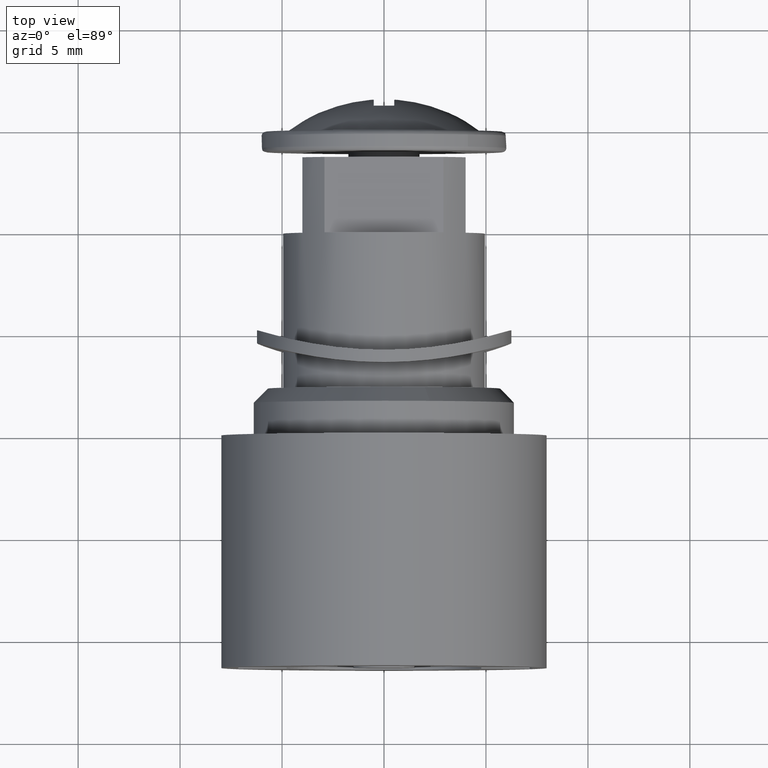
[diagram: clean part render]
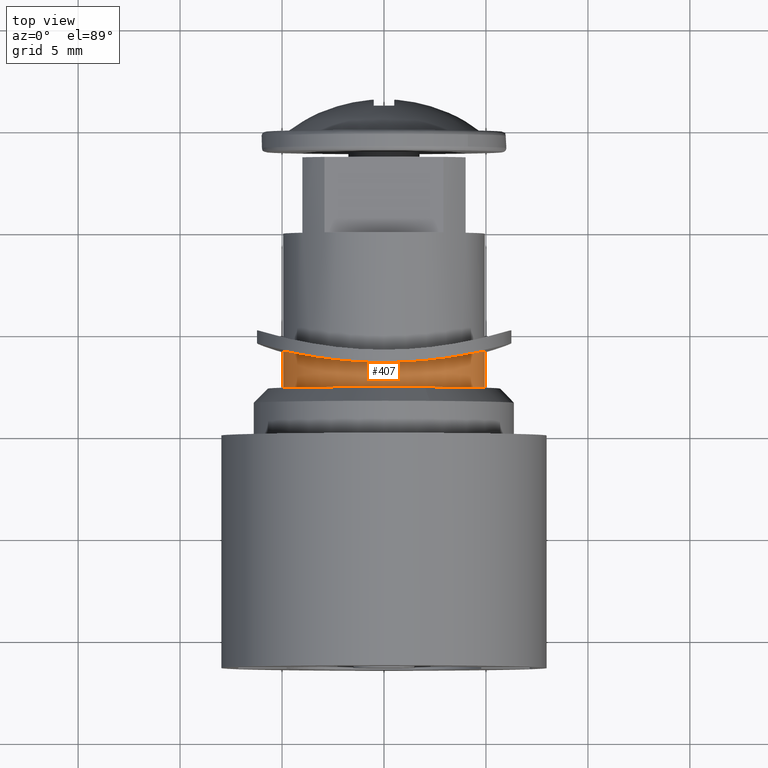
[diagram: same view with one face highlighted and labeled with its STEP entity id]
A machine part, top view. The second image highlights one B-rep face of the part: STEP entity #407.
In plain terms, the highlighted face is a freeform B-spline surface patch.
Its self-contained STEP definition (entity closure, byte-faithful):
#260=CARTESIAN_POINT('',(4.948303993660809,4.186439080181096,0.129575900278496));
#261=CARTESIAN_POINT('',(4.818728093382314,4.186439080181095,5.077879893939304));
#262=CARTESIAN_POINT('',(-0.129575900278496,4.186439080181096,4.948303993660809));
#263=CARTESIAN_POINT('',(-5.077879893939304,4.186439080181095,4.818728093382314));
#264=CARTESIAN_POINT('',(-4.948303993660809,4.186439080181096,-0.129575900278496));
#265=CARTESIAN_POINT('',(4.948303993660809,2.252839134970670,0.129575900278496));
#266=CARTESIAN_POINT('',(4.818728093382314,2.252839134970671,5.077879893939304));
#267=CARTESIAN_POINT('',(-0.129575900278496,2.252839134970670,4.948303993660809));
#268=CARTESIAN_POINT('',(-5.077879893939304,2.252839134970671,4.818728093382314));
#269=CARTESIAN_POINT('',(-4.948303993660809,2.252839134970670,-0.129575900278496));
#277=(BOUNDED_SURFACE()B_SPLINE_SURFACE(2,1,((#260,#265),(#261,#266),(#262,#267),(#263,#268),(#264,#269)),.UNSPECIFIED.,.F.,.F.,.U.)B_SPLINE_SURFACE_WITH_KNOTS((3,2,3),(2,2),(0.0,8.201428924534207,16.402857849068418),(0.0,1.0),.UNSPECIFIED.)GEOMETRIC_REPRESENTATION_ITEM()RATIONAL_B_SPLINE_SURFACE(((1.0,1.0),(0.707106781186548,0.707106781186548),(1.0,1.0),(0.707106781186548,0.707106781186548),(1.0,1.0)))REPRESENTATION_ITEM('')SURFACE());
#278=CARTESIAN_POINT('',(-0.002099543372833,3.500000733602917,4.949999789851526));
#279=VERTEX_POINT('',#278);
#280=CARTESIAN_POINT('',(4.948302961237921,4.139980846063183,0.129575664480564));
#281=VERTEX_POINT('',#280);
#282=CARTESIAN_POINT('',(-0.002099543372833,3.500000733602917,4.949999789851526));
#283=CARTESIAN_POINT('',(0.321722795813629,3.499965757151134,4.950137139903032));
#284=CARTESIAN_POINT('',(0.644658245779119,3.508018342886984,4.918792569408495));
#285=CARTESIAN_POINT('',(1.288089916593785,3.540026734876958,4.790712815840104));
#286=CARTESIAN_POINT('',(1.597715790000522,3.563417965830636,4.696170611133682));
#287=CARTESIAN_POINT('',(2.045016414102488,3.607227785039646,4.510705501454247));
#288=CARTESIAN_POINT('',(2.191238857997488,3.623288074592193,4.441552171374233));
#289=CARTESIAN_POINT('',(2.406191885821426,3.649276257196116,4.326586067553055));
#290=CARTESIAN_POINT('',(2.477297398221124,3.658280682739648,4.286270742980817));
#291=CARTESIAN_POINT('',(2.616778570513428,3.676704807029641,4.202569382632230));
#292=CARTESIAN_POINT('',(2.685211659041311,3.686128896932317,4.159167080375737));
#293=CARTESIAN_POINT('',(3.020985535947149,3.734127149183395,3.934539420449199));
#294=CARTESIAN_POINT('',(3.269340775626774,3.775334166287148,3.730696005035675));
#295=CARTESIAN_POINT('',(3.554825713375168,3.827524198750967,3.445610455994516));
#296=CARTESIAN_POINT('',(3.610662971688160,3.837995990136804,3.387064880087545));
#297=CARTESIAN_POINT('',(3.719779028855245,3.858933253026692,3.266854737575257));
#298=CARTESIAN_POINT('',(3.773087421954459,3.869406057795322,3.205134447970790));
#299=CARTESIAN_POINT('',(3.927446444473180,3.900362686769253,3.017274666834178));
#300=CARTESIAN_POINT('',(4.023545931494982,3.920497606812671,2.887809663269210));
#301=CARTESIAN_POINT('',(4.291966231532462,3.978572714025878,2.486959984674374));
#302=CARTESIAN_POINT('',(4.444613132951807,4.014199290437531,2.203247557131390));
#303=CARTESIAN_POINT('',(4.601277114686917,4.052068913716880,1.826857250782440));
#304=CARTESIAN_POINT('',(4.630865454654090,4.059303864641439,1.750490973033831));
#305=CARTESIAN_POINT('',(4.685907526387863,4.072881920147184,1.597311633245639));
#306=CARTESIAN_POINT('',(4.711455647606940,4.079247728232072,1.520281038566840));
#307=CARTESIAN_POINT('',(4.782269633578633,4.097021958008815,1.287882339107075));
#308=CARTESIAN_POINT('',(4.861168158060776,4.117191749912053,0.974538103212876));
#309=CARTESIAN_POINT('',(4.909270678461004,4.129748688641580,0.654257280323307));
#310=CARTESIAN_POINT('',(4.933548182457051,4.136103766557798,0.411381109906006));
#311=CARTESIAN_POINT('',(4.939670545123053,4.137711663310330,0.329977368555349));
#312=CARTESIAN_POINT('',(4.945760410220337,4.139312129814794,0.208636579492063));
#313=CARTESIAN_POINT('',(4.947268218436352,4.139708645816957,0.169094395870061));
#314=CARTESIAN_POINT('',(4.948302961237921,4.139980846063183,0.129575664480564));
#315=B_SPLINE_CURVE_WITH_KNOTS('',3,(#282,#283,#284,#285,#286,#287,#288,#289,#290,#291,#292,#293,#294,#295,#296,#297,#298,#299,#300,#301,#302,#303,#304,#305,#306,#307,#308,#309,#310,#311,#312,#313,#314),.UNSPECIFIED.,.F.,.U.,(4,2,2,2,2,2,2,2,2,2,2,2,2,1,2,2,4),(0.500000000000000,0.531250000000000,0.562500000000000,0.578125000000000,0.585937500000000,0.593750000000000,0.625000000000000,0.632812500000000,0.640625000000000,0.656250000000000,0.687500000000000,0.695312500000000,0.703125000000000,0.718750000000000,0.734375000000000,0.742187500000000,0.745955581096318),.UNSPECIFIED.);
#316=EDGE_CURVE('',#279,#281,#315,.T.);
#317=ORIENTED_EDGE('',*,*,#316,.F.);
#318=CARTESIAN_POINT('',(-4.948309921022460,4.139981888336846,-0.129576054543701));
#319=VERTEX_POINT('',#318);
#320=CARTESIAN_POINT('',(-4.948309921022460,4.139981888336846,-0.129576054543701));
#321=CARTESIAN_POINT('',(-4.949405817828960,4.140272064040057,-0.087469301620223));
#322=CARTESIAN_POINT('',(-4.949966589064130,4.140421095366016,-0.045324361945491));
#323=CARTESIAN_POINT('',(-4.950096392108939,4.140455222891127,0.159015787891033));
#324=CARTESIAN_POINT('',(-4.942252430209198,4.138385309138472,0.321739987836729));
#325=CARTESIAN_POINT('',(-4.910092055518179,4.129965337627615,0.648362751332585));
#326=CARTESIAN_POINT('',(-4.886011895726635,4.123678141167941,0.809703657340282));
#327=CARTESIAN_POINT('',(-4.790836434982202,4.099148104922952,1.286650040766992));
#328=CARTESIAN_POINT('',(-4.696963821221866,4.075217587607180,1.595873404879965));
#329=CARTESIAN_POINT('',(-4.541182842253085,4.037540351122195,1.971480363621703));
#330=CARTESIAN_POINT('',(-4.507987516337105,4.029593579974270,2.046253006952550));
#331=CARTESIAN_POINT('',(-4.438196108474224,4.013100904726826,2.193517698493048));
#332=CARTESIAN_POINT('',(-4.401627795989550,4.004561049029977,2.265984659945171));
#333=CARTESIAN_POINT('',(-4.287003589428082,3.978173561197867,2.479971710222488));
#334=CARTESIAN_POINT('',(-4.204040752012639,3.959558728935548,2.618086346395814));
#335=CARTESIAN_POINT('',(-4.025232960375913,3.920856014282992,2.885452807146525));
#336=CARTESIAN_POINT('',(-3.929387870446559,3.900767218715198,3.014704409836398));
#337=CARTESIAN_POINT('',(-3.775820144241278,3.869948498565023,3.201901710201524));
#338=CARTESIAN_POINT('',(-3.722994496344990,3.859561323492494,3.263185404390043));
#339=CARTESIAN_POINT('',(-3.614008719922731,3.838629583415162,3.383490749026647));
#340=CARTESIAN_POINT('',(-3.557787245377366,3.828075349365212,3.442556915639807));
#341=CARTESIAN_POINT('',(-3.271314738914261,3.775661843805110,3.729081636995620));
#342=CARTESIAN_POINT('',(-3.022908080590512,3.734446599530593,3.932959397300881));
#343=CARTESIAN_POINT('',(-2.621716983116832,3.677031403860623,4.201786057372718));
#344=CARTESIAN_POINT('',(-2.483188239015497,3.658625052793203,4.285183221545315));
#345=CARTESIAN_POINT('',(-2.267900525911419,3.632538386512647,4.400653793384247));
#346=CARTESIAN_POINT('',(-2.194920214638032,3.624104152766393,4.437501883701896));
#347=CARTESIAN_POINT('',(-2.048097047343503,3.607993272058737,4.507149560865092));
#348=CARTESIAN_POINT('',(-1.974052074835372,3.600291479750129,4.540061016332655));
#349=CARTESIAN_POINT('',(-1.600697101210951,3.563656522397390,4.695197904383737));
#350=CARTESIAN_POINT('',(-1.292084942252082,3.540340827217309,4.789439120454422));
#351=CARTESIAN_POINT('',(-0.893605180228398,3.520375393145606,4.869350894323548));
#352=CARTESIAN_POINT('',(-0.813267929953769,3.516841740572927,4.883421312956025));
#353=CARTESIAN_POINT('',(-0.651279858812010,3.510738712144465,4.907651502584169));
#354=CARTESIAN_POINT('',(-0.569789271973740,3.508178725778804,4.917774048274439));
#355=CARTESIAN_POINT('',(-0.326169737646357,3.502057081551408,4.941938191777518));
#356=CARTESIAN_POINT('',(-0.164010601982767,3.500018211205051,4.949931117643772));
#357=CARTESIAN_POINT('',(-0.002099543372833,3.500000733602917,4.949999789851526));
#358=B_SPLINE_CURVE_WITH_KNOTS('',3,(#320,#321,#322,#323,#324,#325,#326,#327,#328,#329,#330,#331,#332,#333,#334,#335,#336,#337,#338,#339,#340,#341,#342,#343,#344,#345,#346,#347,#348,#349,#350,#351,#352,#353,#354,#355,#356,#357),.UNSPECIFIED.,.F.,.U.,(4,2,2,2,2,2,2,2,2,2,2,2,2,2,2,2,2,2,4),(0.245935358766064,0.250000000000000,0.265625000000000,0.281250000000000,0.312500000000000,0.320312500000000,0.328125000000000,0.343750000000000,0.359375000000000,0.367187500000000,0.375000000000000,0.406250000000000,0.421875000000000,0.429687500000000,0.437500000000000,0.468750000000000,0.476562500000000,0.484375000000000,0.500000000000000),.UNSPECIFIED.);
#359=EDGE_CURVE('',#319,#279,#358,.T.);
#360=ORIENTED_EDGE('',*,*,#359,.F.);
#361=CARTESIAN_POINT('',(-4.948304029277356,2.300000109244095,-0.129574540123183));
#362=VERTEX_POINT('',#361);
#363=CARTESIAN_POINT('',(-4.948309921022460,4.139981888336846,-0.129576054543701));
#364=CARTESIAN_POINT('',(-4.948304029277356,2.300000109244095,-0.129574540123183));
#365=QUASI_UNIFORM_CURVE('',1,(#363,#364),.UNSPECIFIED.,.F.,.U.);
#366=EDGE_CURVE('',#319,#362,#365,.T.);
#367=ORIENTED_EDGE('',*,*,#366,.T.);
#368=CARTESIAN_POINT('',(0.0,2.300000109244095,4.950000235112370));
#369=VERTEX_POINT('',#368);
#370=CARTESIAN_POINT('',(0.0,2.300000109244095,4.950000235112370));
#371=CARTESIAN_POINT('',(-4.950000235112370,2.300000109244096,4.950000235112370));
#372=CARTESIAN_POINT('',(-4.950000235112370,2.300000109244095,0.0));
#373=CARTESIAN_POINT('',(-4.950000235112370,2.300000109244095,-0.064798372220364));
#374=CARTESIAN_POINT('',(-4.948304029277356,2.300000109244096,-0.129574540123183));
#382=(BOUNDED_CURVE()B_SPLINE_CURVE(2,(#370,#371,#372,#373,#374),.UNSPECIFIED.,.F.,.U.)B_SPLINE_CURVE_WITH_KNOTS((3,2,3),(0.500000000000000,0.750000000000000,0.754603258582320),.UNSPECIFIED.)CURVE()GEOMETRIC_REPRESENTATION_ITEM()RATIONAL_B_SPLINE_CURVE((1.0,0.707106781186547,1.0,0.994606947107174,0.989412499150459))REPRESENTATION_ITEM(''));
#383=EDGE_CURVE('',#369,#362,#382,.T.);
#384=ORIENTED_EDGE('',*,*,#383,.F.);
#385=CARTESIAN_POINT('',(4.948304029277356,2.300000109244095,0.129574540123183));
#386=VERTEX_POINT('',#385);
#387=CARTESIAN_POINT('',(4.948304029277356,2.300000109244096,0.129574540123183));
#388=CARTESIAN_POINT('',(4.822078066012023,2.300000109244096,4.950000235112370));
#389=CARTESIAN_POINT('',(0.0,2.300000109244095,4.950000235112370));
#397=(BOUNDED_CURVE()B_SPLINE_CURVE(2,(#387,#388,#389),.UNSPECIFIED.,.F.,.U.)B_SPLINE_CURVE_WITH_KNOTS((3,3),(0.254603258582320,0.500000000000000),.UNSPECIFIED.)CURVE()GEOMETRIC_REPRESENTATION_ITEM()RATIONAL_B_SPLINE_CURVE((0.989412499150459,0.712499834079373,1.0))REPRESENTATION_ITEM(''));
#398=EDGE_CURVE('',#386,#369,#397,.T.);
#399=ORIENTED_EDGE('',*,*,#398,.F.);
#400=CARTESIAN_POINT('',(4.948302961237921,4.139980846063183,0.129575664480564));
#401=CARTESIAN_POINT('',(4.948304029277356,2.300000109244095,0.129574540123183));
#402=QUASI_UNIFORM_CURVE('',1,(#400,#401),.UNSPECIFIED.,.F.,.U.);
#403=EDGE_CURVE('',#281,#386,#402,.T.);
#404=ORIENTED_EDGE('',*,*,#403,.F.);
#405=EDGE_LOOP('',(#317,#360,#367,#384,#399,#404));
#406=FACE_OUTER_BOUND('',#405,.T.);
#407=ADVANCED_FACE('',(#406),#277,.T.);